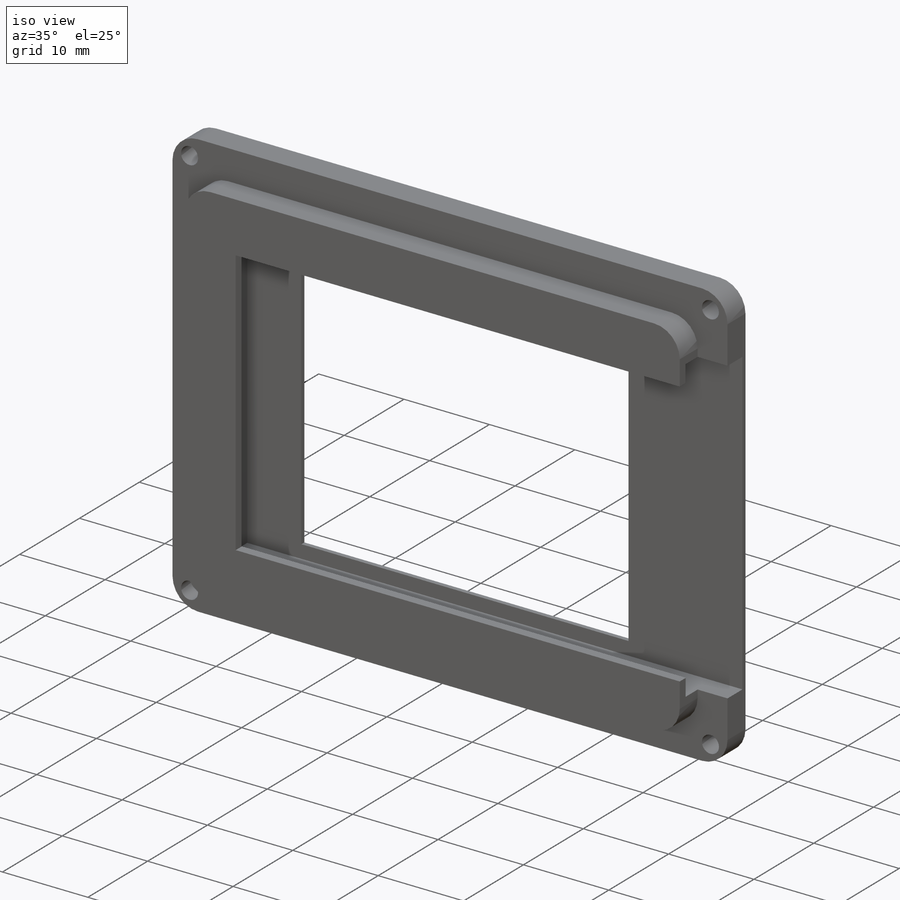
[diagram: iso view]
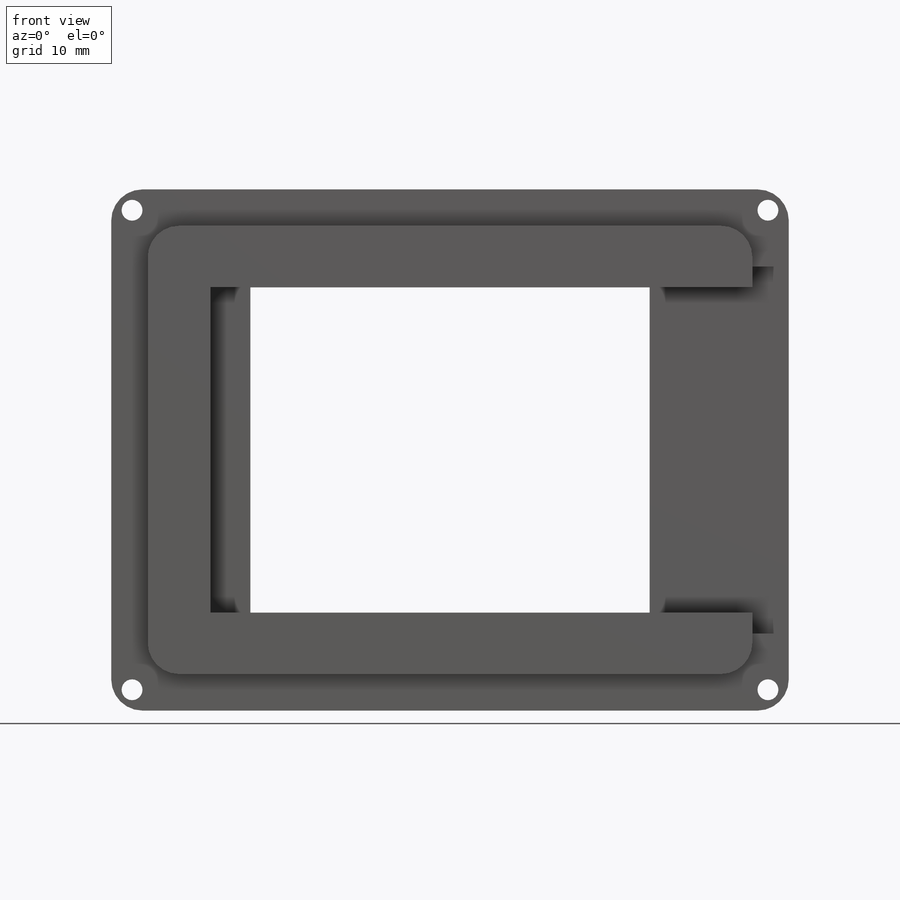
[diagram: front view]
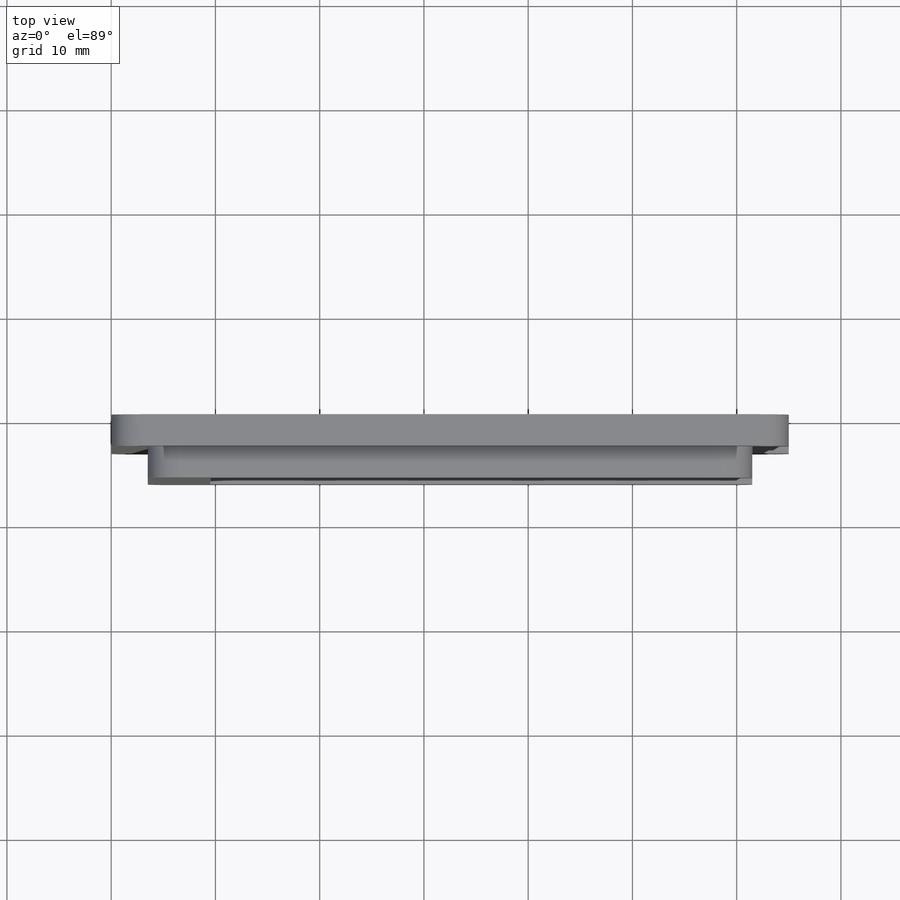
[diagram: top view]
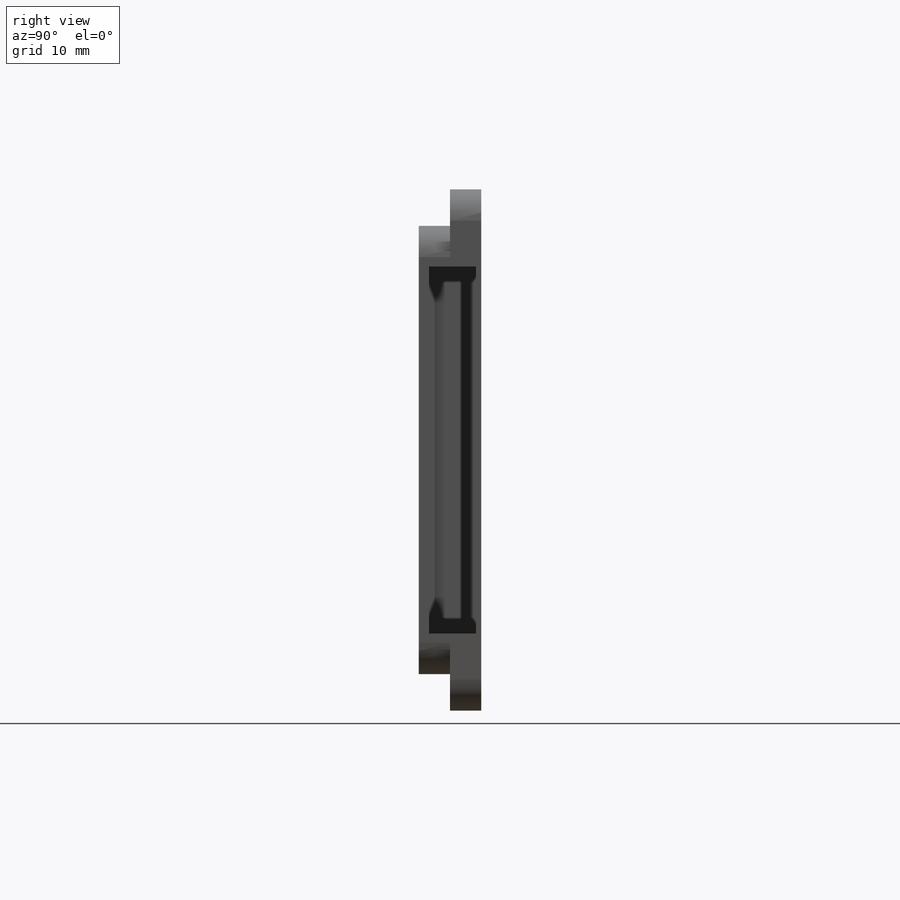
[diagram: right view]
SOLIDWORKS PART (.sldprt)
format: sldprt  version: not decoded by parser v0  size: 286,208 bytes
history: native  units: mm
features: sketch x6, cut_extrude x4, plane x3, extrude x2, material x1, fillet x1, chamfer x1 (+9 scaffold rows collapsed)
feature tree (27):
  scaffold x9  (default folders/planes/origin — collapsed)
  material  "Material <nicht festgelegt>"
  plane  "Ebene vorne"
  plane  "Ebene oben"
  plane  "Ebene rechts"
  sketch  "Skizze1"  dims[D1=50.0mm D2=65.0mm]
  extrude  "Aufsatz-Linear austragen1"  Depth=3mm
  sketch  "Skizze2"  dims[D1=3.5mm]
  extrude  "Aufsatz-Linear austragen2"  Depth=3mm
  sketch  "Skizze7"  dims[c1.D1=35.2mm c1.D2=17.6mm c1.D3=4.5mm c1.D4=0.5mm c2.D2=0.5mm c2.D4=17.6mm]
  cut_extrude  "Schnitt-Linear austragen2"  Depth=58mm
  sketch  "Skizze9"  dims[D1=2.0mm D2=2.0mm]
  cut_extrude  "Schnitt-Linear austragen3"  Depth=52mm
  sketch  "Skizze10"  dims[D1=32.1mm D2=38.3mm D3=16.05mm D4=19.15mm]
  cut_extrude  "Schnitt-Linear austragen4"  [1 undecoded]
  fillet  "Verrundung2"  Radius=3mm
  sketch  "Skizze11"  dims[c1.D1=~1.601951mm c1.D2=2.0mm c2.D1=2.0mm c2.D2=2.0mm c2.D3=2.0mm c2.D4=2.0mm c2.D5=2.0mm c2.D6=2.0mm c2.D7=2.0mm c2.D8=2.0mm]
  cut_extrude  "Schnitt-Linear austragen5"  [1 undecoded]
  chamfer  "Fase1"  Distance=0.5mm Angle=45deg
decode coverage: 12 of 14 modeling features carry decoded parameters
note: ~ marks probable driven/reference dimensions
note: 2 parameter values undecoded
note: suppression state not decoded; provenance and decode notes live in map.json
